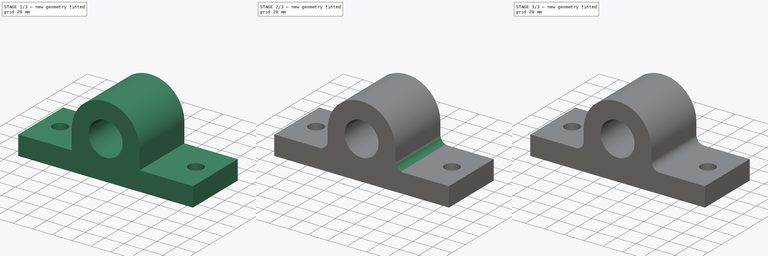
[diagram: build sequence overview — one tinted view per stage of 3, left to right]
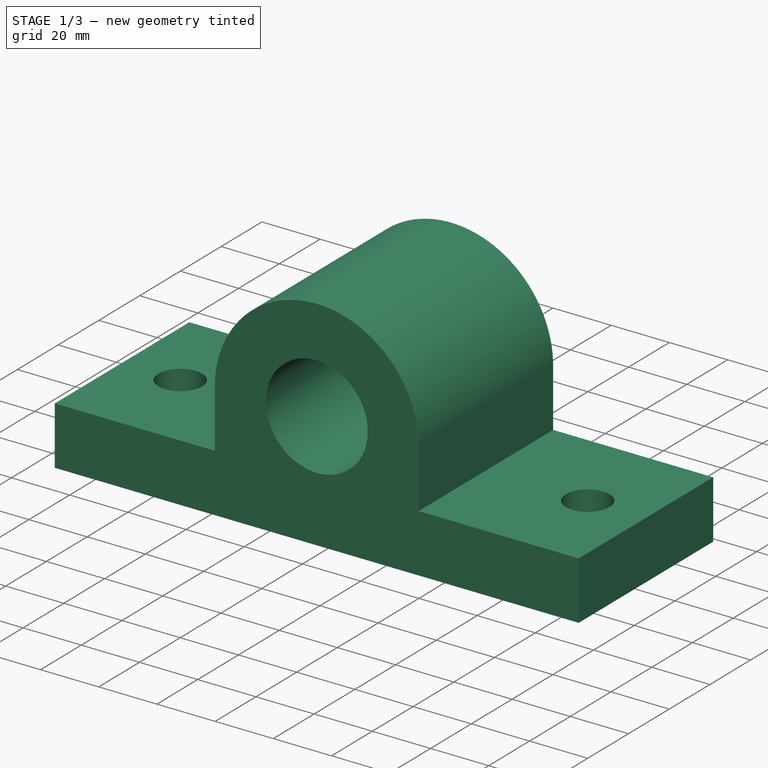
[diagram: stage 1 of 3 — iso view after this stage's code; geometry added in this stage tinted green]
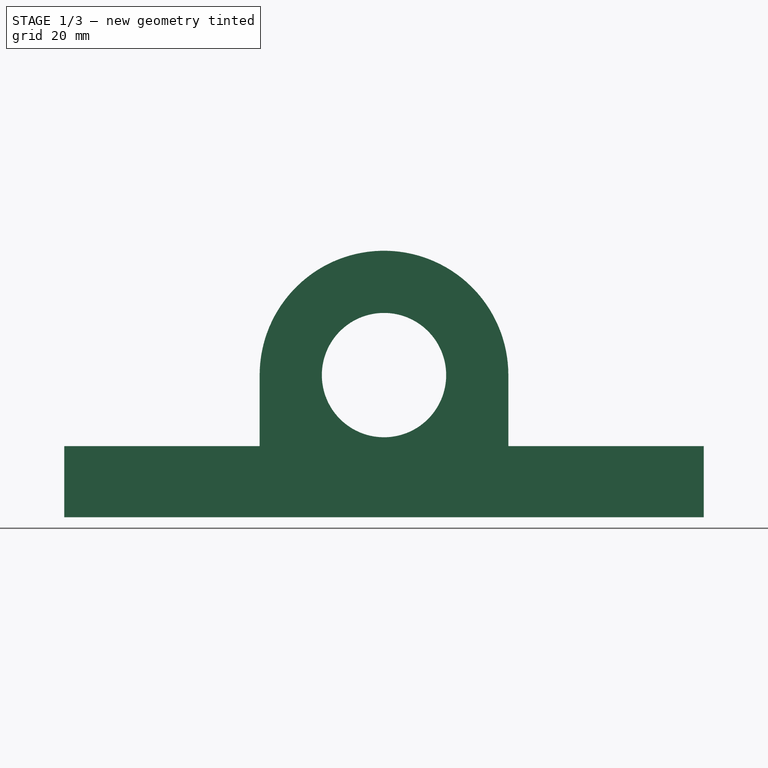
[diagram: stage 1 of 3 — front view after this stage's code; geometry added in this stage tinted green]
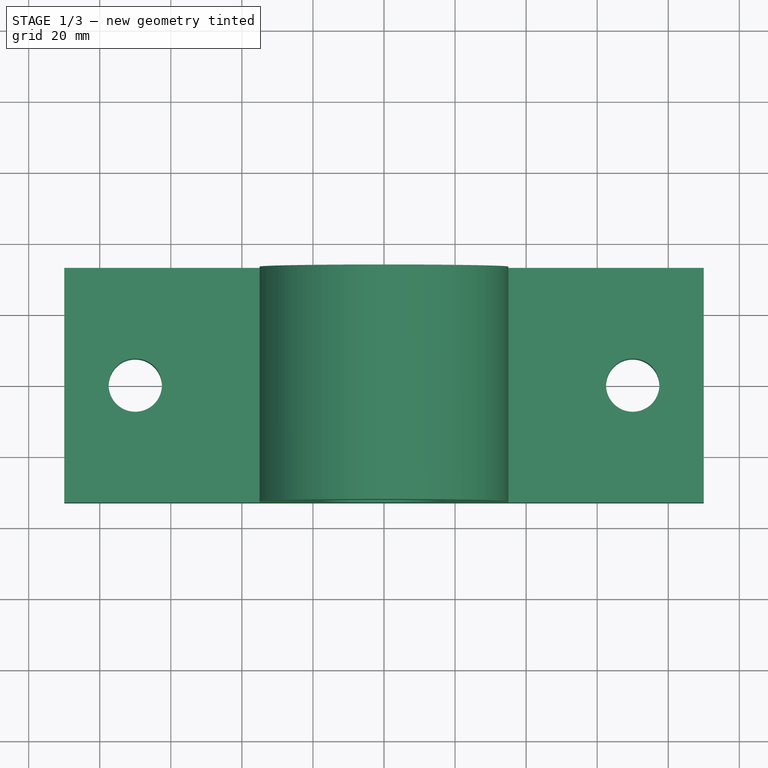
[diagram: stage 1 of 3 — top view after this stage's code; geometry added in this stage tinted green]
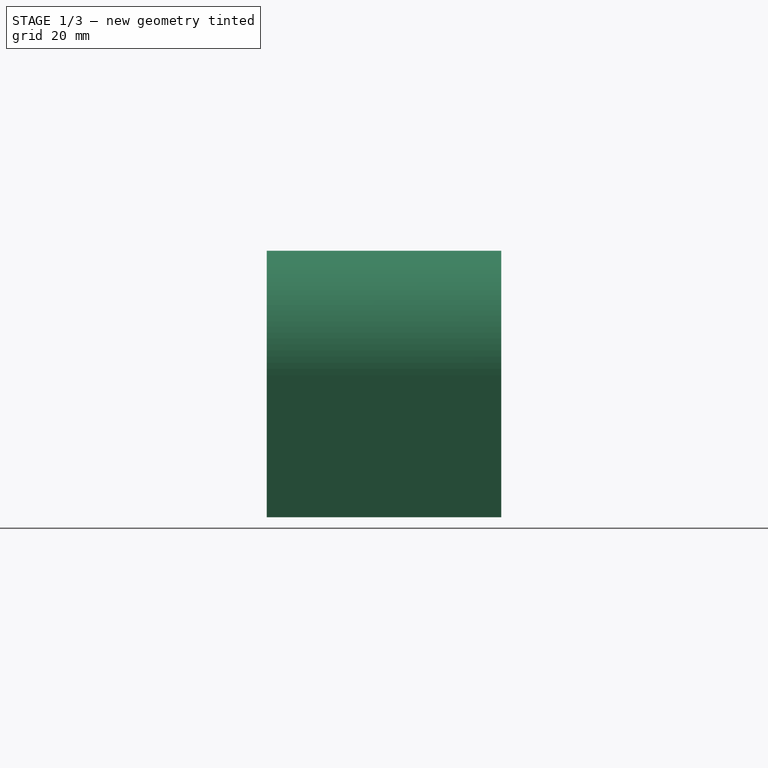
[diagram: stage 1 of 3 — right view after this stage's code; geometry added in this stage tinted green]
FCSTD DOCUMENT  (FreeCAD 0.16R)
Label: Fig 3.13 Final
License: All rights reserved
LicenseURL: http://en.wikipedia.org/wiki/All_rights_reserved
objects: Sketcher::SketchObject×3, PartDesign::Pad×2, PartDesign::Fillet×2, PartDesign::Chamfer×2, Part::MultiFuse×1, PartDesign::Pocket×1
note: 14 computed .brp shape members not serialized (recipe doc carries the construction recipe); baked Part::Feature solids carry a one-line shape summary decoded from their .brp

FEATURE [Sketcher::SketchObject] Sketch
  sketch-geometry (6):
    g0: LineSegment StartX=-90 StartY=33 StartZ=0 EndX=90 EndY=33 EndZ=0
    g1: LineSegment StartX=90 StartY=33 StartZ=0 EndX=90 EndY=-33 EndZ=0
    g2: LineSegment StartX=90 StartY=-33 StartZ=0 EndX=-90 EndY=-33 EndZ=0
    g3: LineSegment StartX=-90 StartY=-33 StartZ=0 EndX=-90 EndY=33 EndZ=0
    g4: Circle CenterX=-70 CenterY=0 CenterZ=0 NormalX=0 NormalY=0 NormalZ=1 Radius=7.5
    g5: Circle CenterX=70 CenterY=0 CenterZ=0 NormalX=0 NormalY=0 NormalZ=1 Radius=7.5
  constraints (19):
    c: Coincident(g0,g1)
    c: Coincident(g1,g2)
    c: Coincident(g2,g3)
    c: Coincident(g3,g0)
    c: Horizontal(g0)
    c: Horizontal(g2)
    c: Vertical(g1)
    c: Vertical(g3)
    c: Symmetric(g1,g2,g-2)
    c: Symmetric(g2,g0,g-1)
    c: DistanceY(g1,g1) = 66
    c: DistanceX(g2,g2) = 180
    c: PointOnObject(g5,g-1)
    c: PointOnObject(g5,g-1)
    c: PointOnObject(g4,g-1)
    c: Radius(g4) = 7.5
    c: Equal(g4,g5)
    c: Symmetric(g4,g5,g-2)
    c: DistanceX(g4,g5) = 140
FEATURE [PartDesign::Pad] Pad
  Length = 20
  Length2 = 100
  Sketch = -> Sketch
  Type = 0
FEATURE [Sketcher::SketchObject] Sketch001
  Placement = pos=(0,0,0) rot=(-1,0,0;4.71239rad)
  sketch-geometry (5):
    g0: Circle CenterX=0 CenterY=40 CenterZ=0 NormalX=0 NormalY=0 NormalZ=1 Radius=17.5
    g1: ArcOfCircle CenterX=0 CenterY=40 CenterZ=0 NormalX=0 NormalY=0 NormalZ=1 Radius=35 StartAngle=6.28318 EndAngle=9.42478
    g2: LineSegment StartX=-35 StartY=39.9999 StartZ=0 EndX=-35 EndY=1.64461 EndZ=0
    g3: LineSegment StartX=-35 StartY=1.64461 StartZ=0 EndX=35 EndY=1.64461 EndZ=0
    g4: LineSegment StartX=35 StartY=1.64461 StartZ=0 EndX=35 EndY=39.9999 EndZ=0
  constraints (14):
    c: PointOnObject(g0,g-2)
    c: DistanceY(g-1,g0) = 40
    c: Coincident(g1,g0)
    c: Radius(g1) = 35
    c: Radius(g0) = 17.5
    c: Coincident(g2,g3)
    c: Horizontal(g3)
    c: Coincident(g3,g4)
    c: Vertical(g4)
    c: Vertical(g2)
    c: Coincident(g1,g4)
    c: Coincident(g1,g2)
    c: Tangent(g4,g1)
    c: Tangent(g2,g1)
FEATURE [PartDesign::Pad] Pad001
  Length = 66
  Length2 = 100
  Midplane = true
  Placement = pos=(0,0,0) rot=(-1,0,0;4.71239rad)
  Reversed = true
  Sketch = -> Sketch001
  Type = 0
FEATURE [Part::MultiFuse] Fusion
  Shapes = -> [Pad,Pad001]
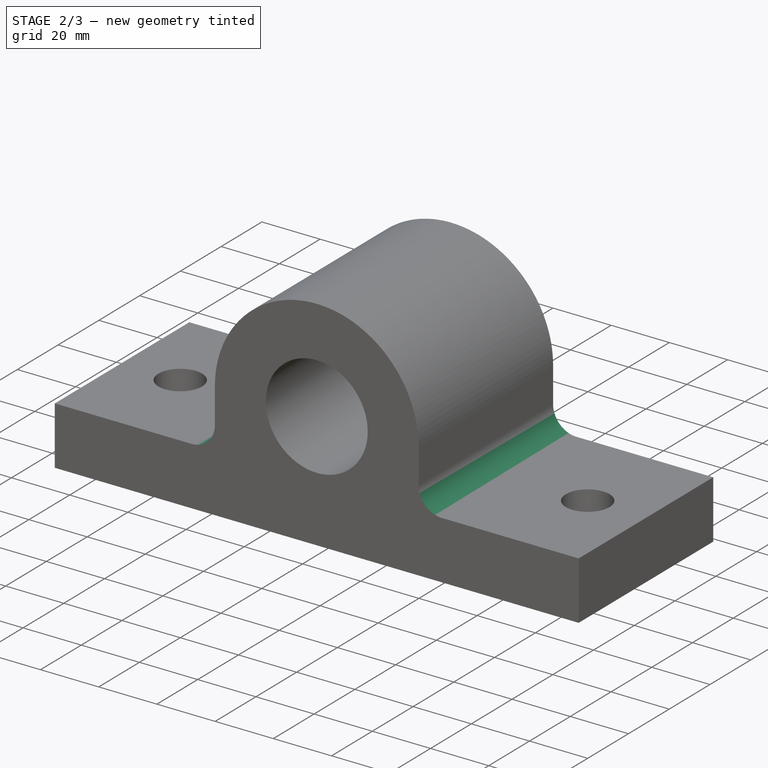
[diagram: stage 2 of 3 — iso view after this stage's code; geometry added in this stage tinted green]
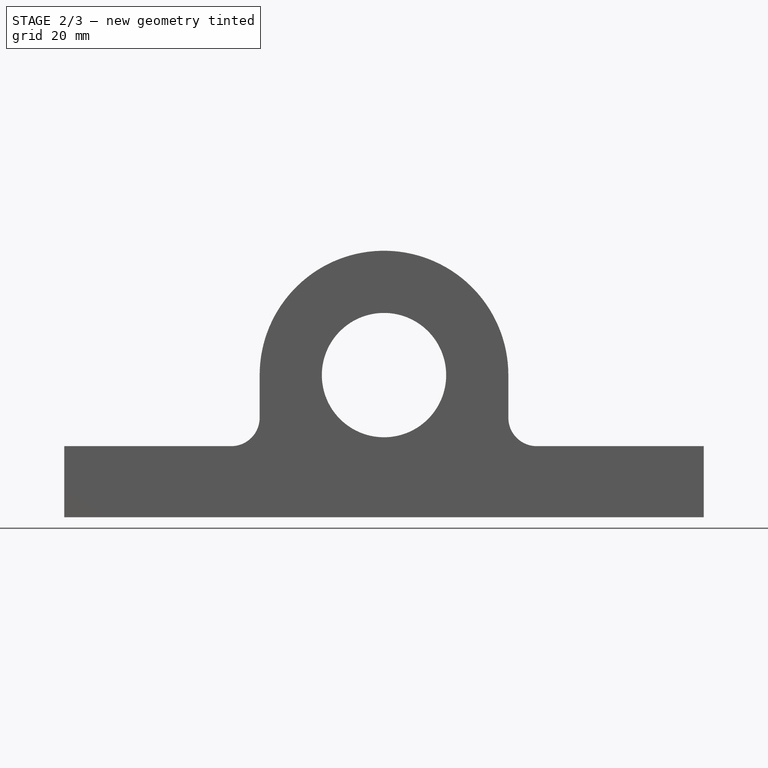
[diagram: stage 2 of 3 — front view after this stage's code; geometry added in this stage tinted green]
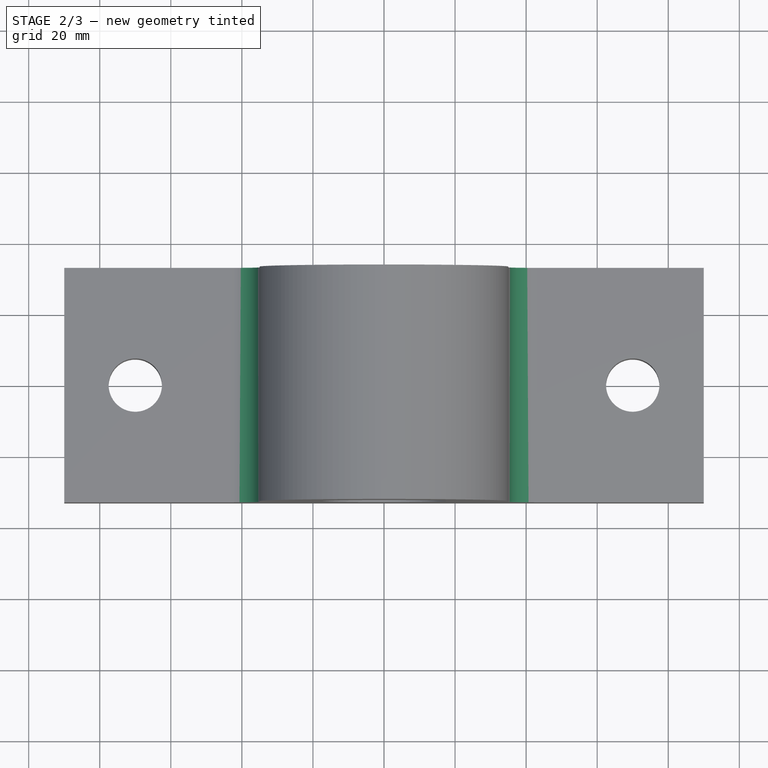
[diagram: stage 2 of 3 — top view after this stage's code; geometry added in this stage tinted green]
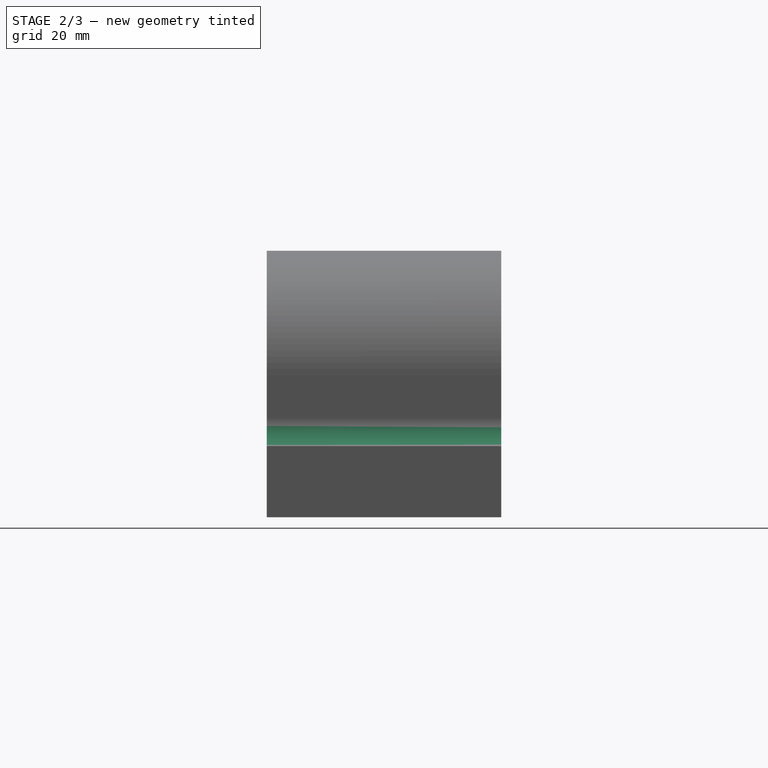
[diagram: stage 2 of 3 — right view after this stage's code; geometry added in this stage tinted green]
FEATURE [PartDesign::Fillet] Fillet
  Base = -> Fusion [Edge21]
  Radius = 8
FEATURE [PartDesign::Fillet] Fillet001
  Base = -> Fillet [Edge33]
  Radius = 8
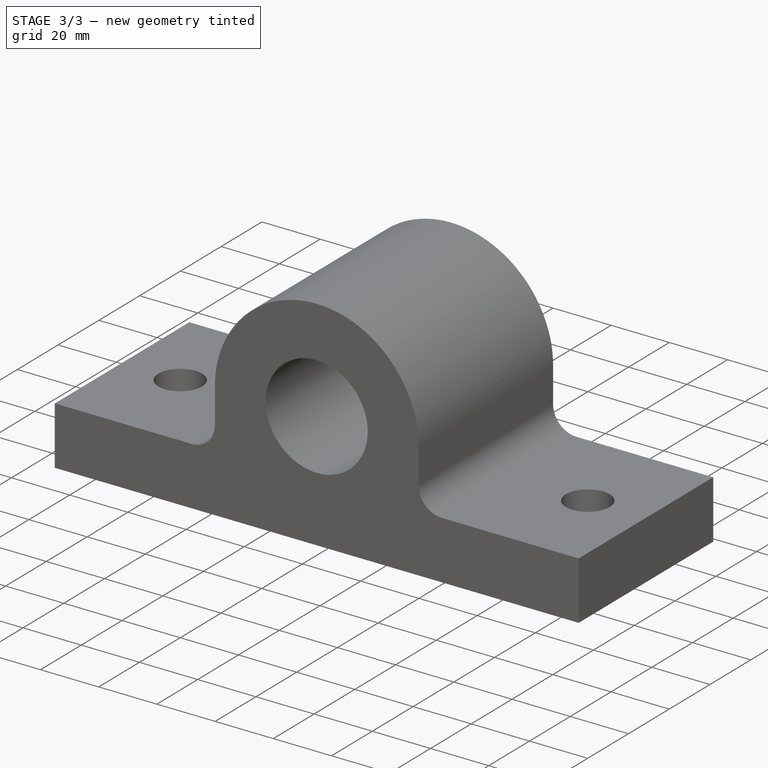
[diagram: stage 3 of 3 — iso view after this stage's code; geometry added in this stage tinted green]
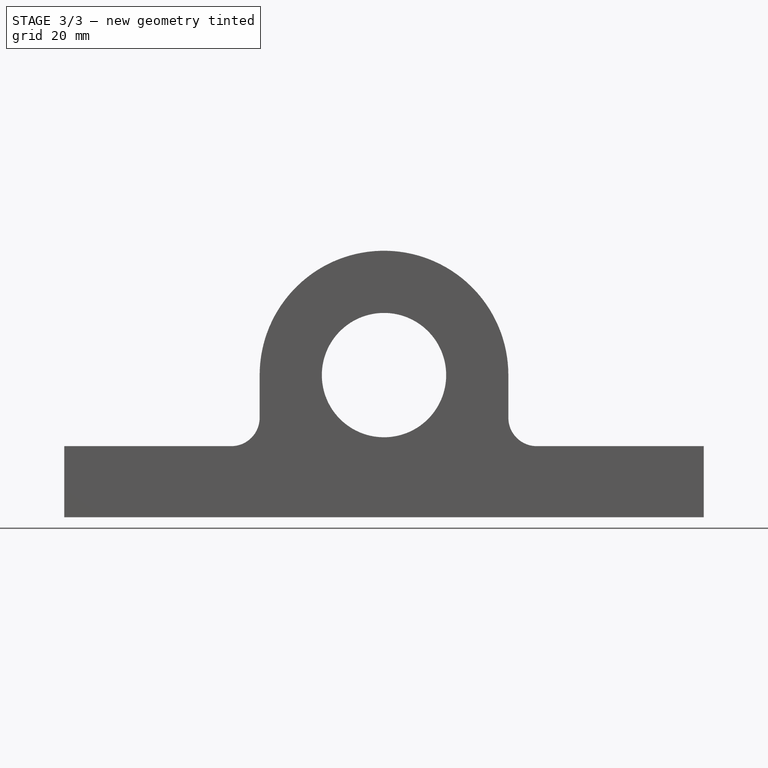
[diagram: stage 3 of 3 — front view after this stage's code; geometry added in this stage tinted green]
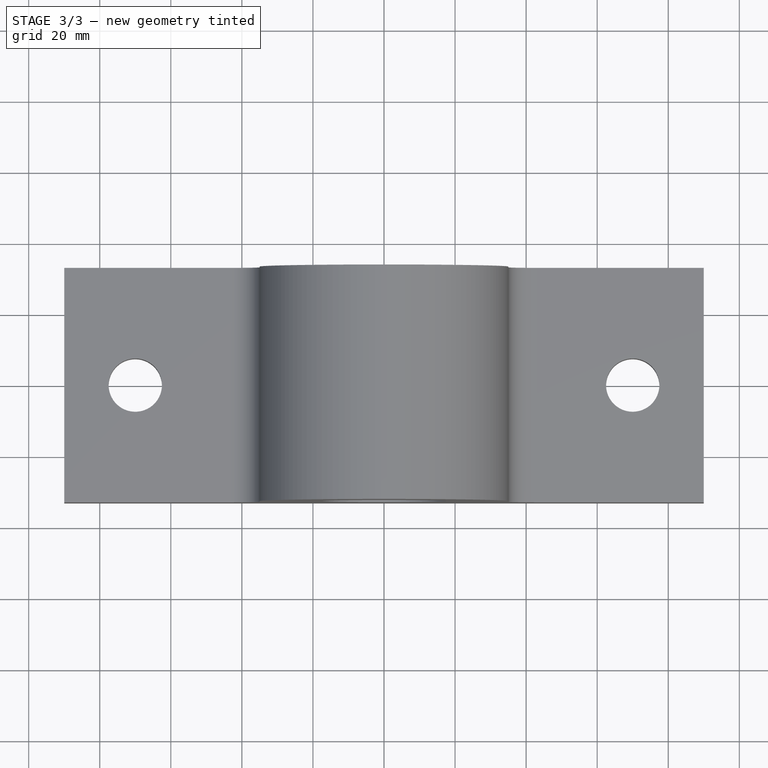
[diagram: stage 3 of 3 — top view after this stage's code; geometry added in this stage tinted green]
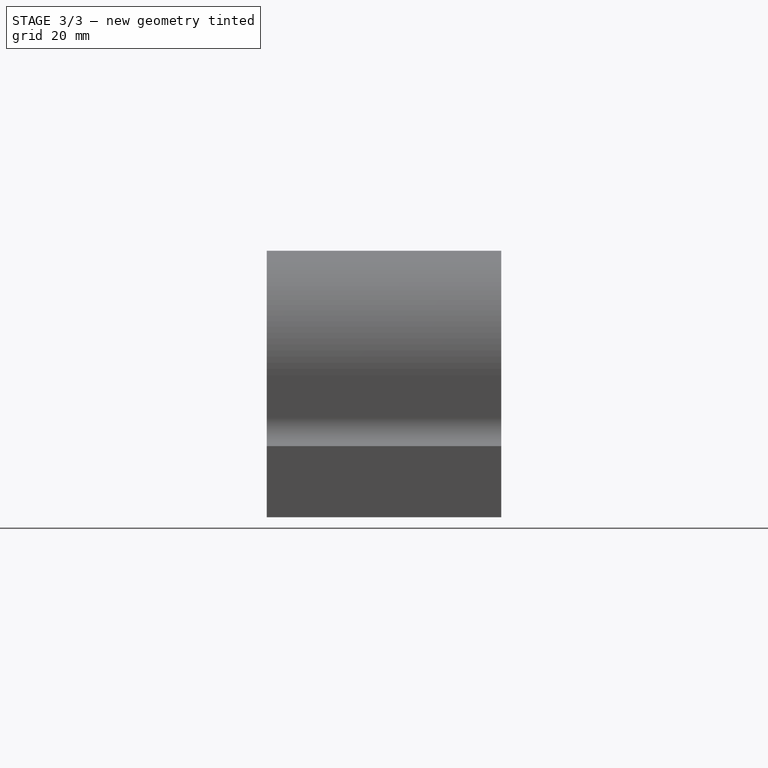
[diagram: stage 3 of 3 — right view after this stage's code; geometry added in this stage tinted green]
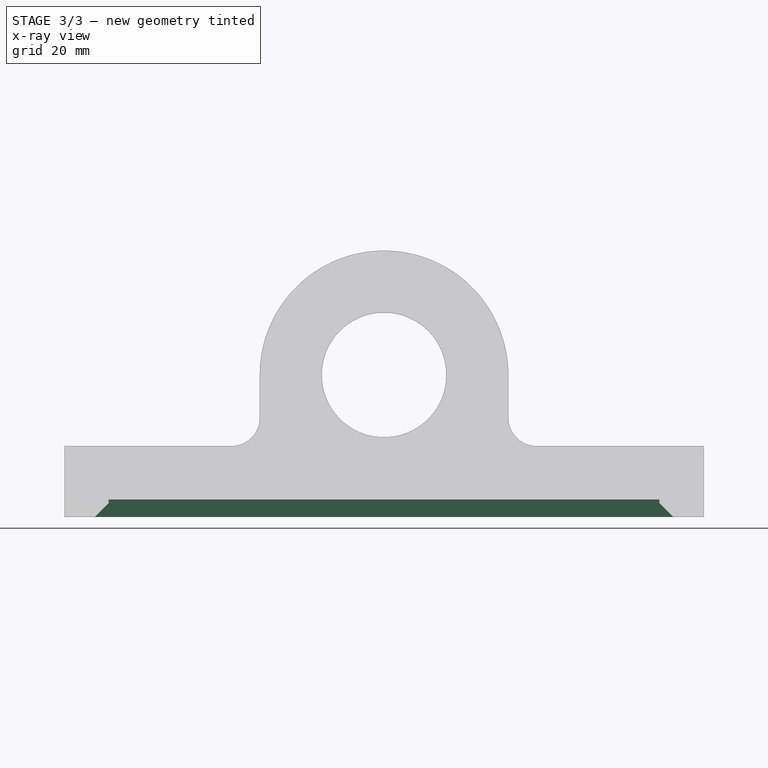
[diagram: stage 3 of 3 — x-ray composite at the front view; earlier geometry ghosted, this stage's added geometry solid]
FEATURE [Sketcher::SketchObject] Sketch002
  Placement = pos=(0,0,0) rot=(1,0,0;3.14159rad)
  Support = -> Fillet001 [Face9]
  sketch-geometry (4):
    g0: LineSegment StartX=-77.5 StartY=29 StartZ=0 EndX=77.5 EndY=29 EndZ=0
    g1: LineSegment StartX=77.5 StartY=29 StartZ=0 EndX=77.5 EndY=-29 EndZ=0
    g2: LineSegment StartX=77.5 StartY=-29 StartZ=0 EndX=-77.5 EndY=-29 EndZ=0
    g3: LineSegment StartX=-77.5 StartY=-29 StartZ=0 EndX=-77.5 EndY=29 EndZ=0
  constraints (12):
    c: Coincident(g0,g1)
    c: Coincident(g1,g2)
    c: Coincident(g2,g3)
    c: Coincident(g3,g0)
    c: Horizontal(g0)
    c: Horizontal(g2)
    c: Vertical(g1)
    c: Vertical(g3)
    c: Symmetric(g1,g2,g-2)
    c: Symmetric(g2,g0,g-1)
    c: DistanceY(g3,g3) = 58
    c: DistanceX(g2,g2) = 155
FEATURE [PartDesign::Pocket] Pocket
  Length = 5
  Sketch = -> Sketch002
  Type = 0
FEATURE [PartDesign::Chamfer] Chamfer
  Base = -> Pocket [Edge31]
  Size = 5
FEATURE [PartDesign::Chamfer] Chamfer001
  Base = -> Chamfer [Edge4]
  Size = 5
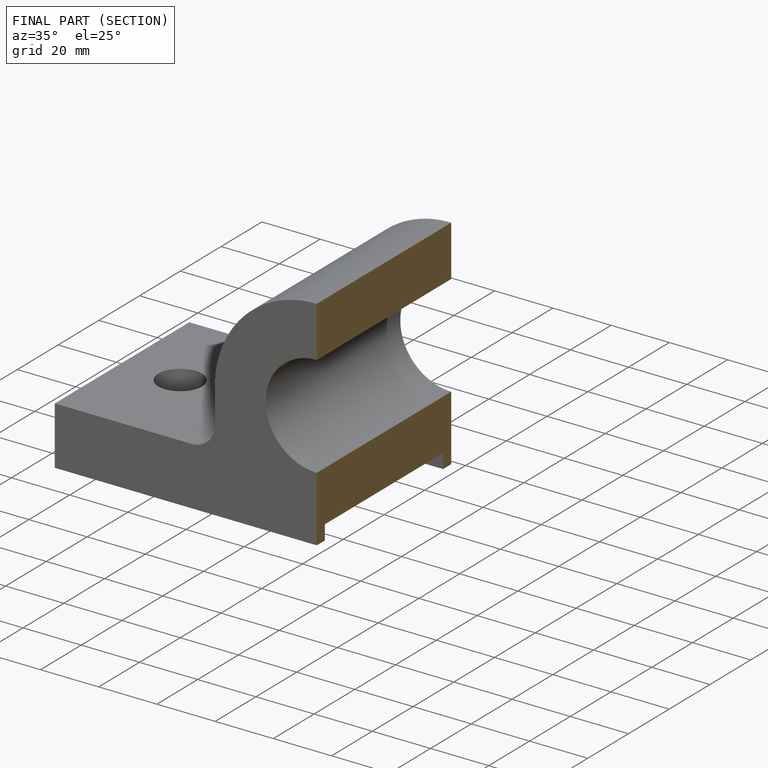
[diagram: finished part — half-section view (interior)]
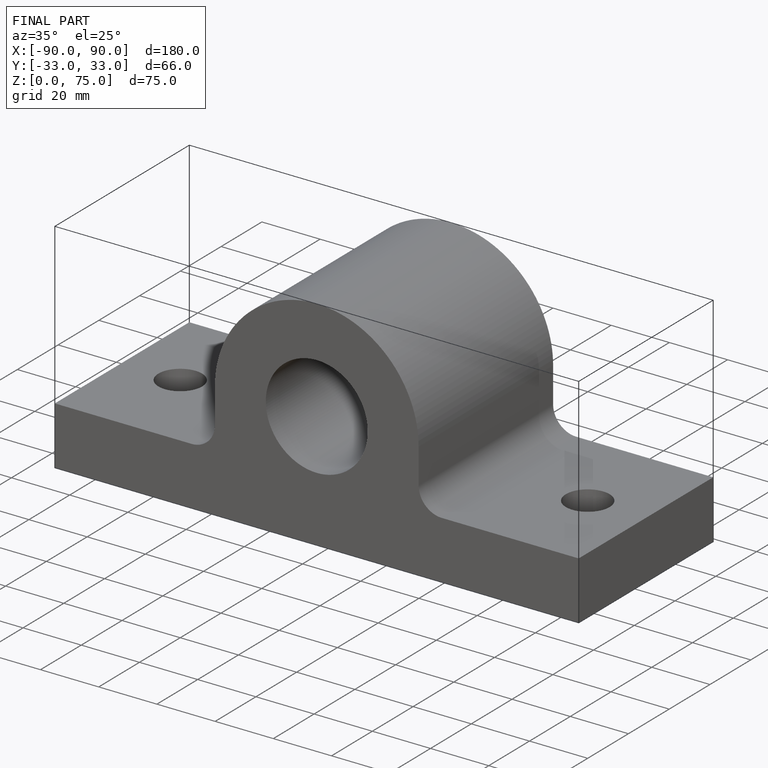
[diagram: finished part — iso view with bounding-box wireframe]
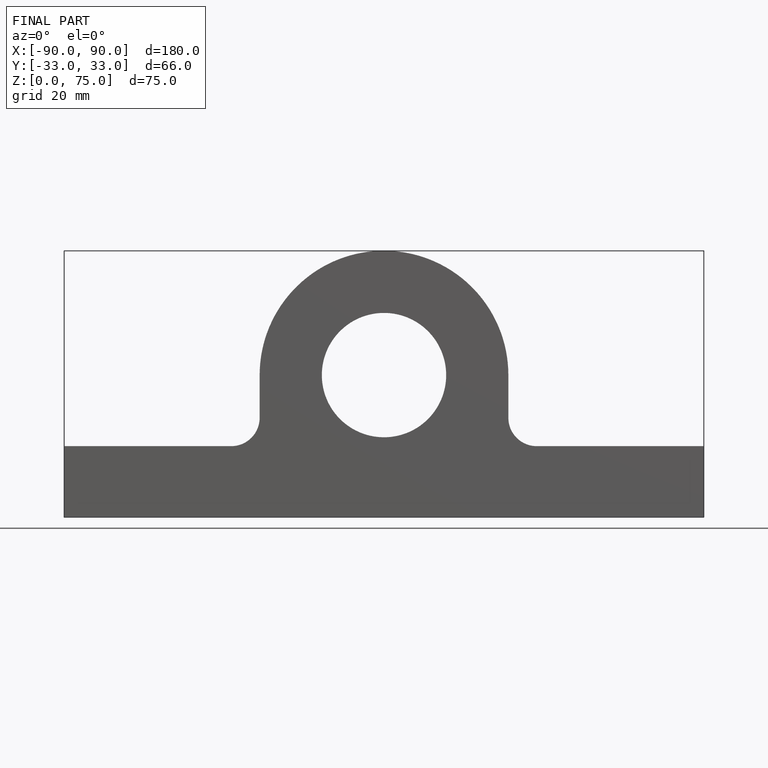
[diagram: finished part — front view with bounding-box wireframe]
